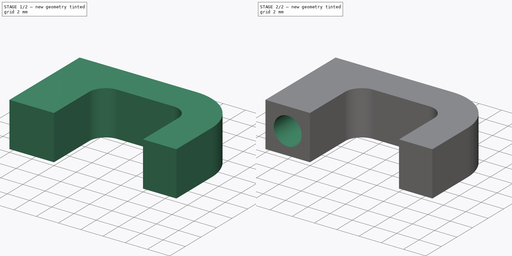
[diagram: build sequence overview — one tinted view per stage of 2, left to right]
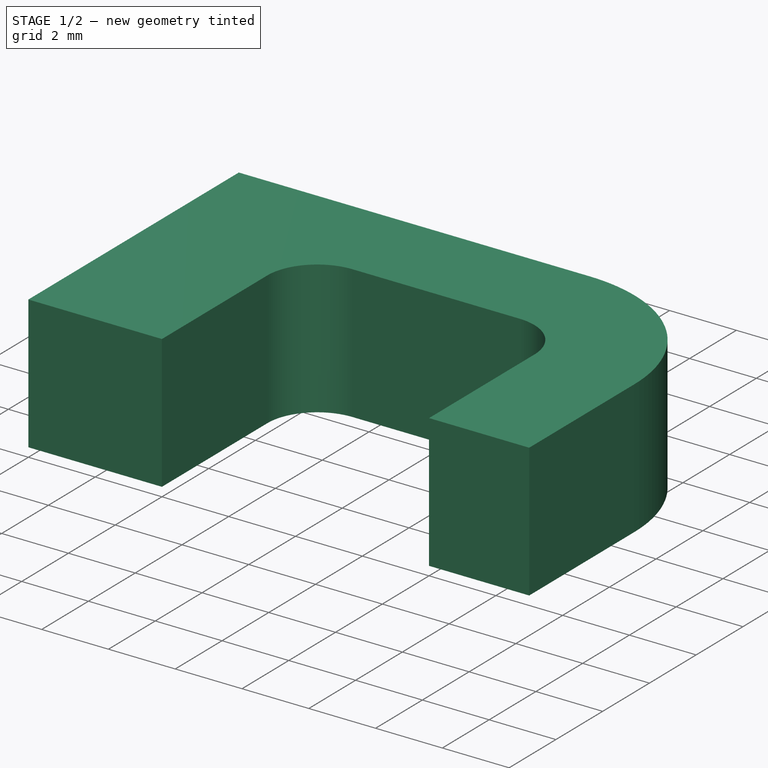
[diagram: stage 1 of 2 — iso view after this stage's code; geometry added in this stage tinted green]
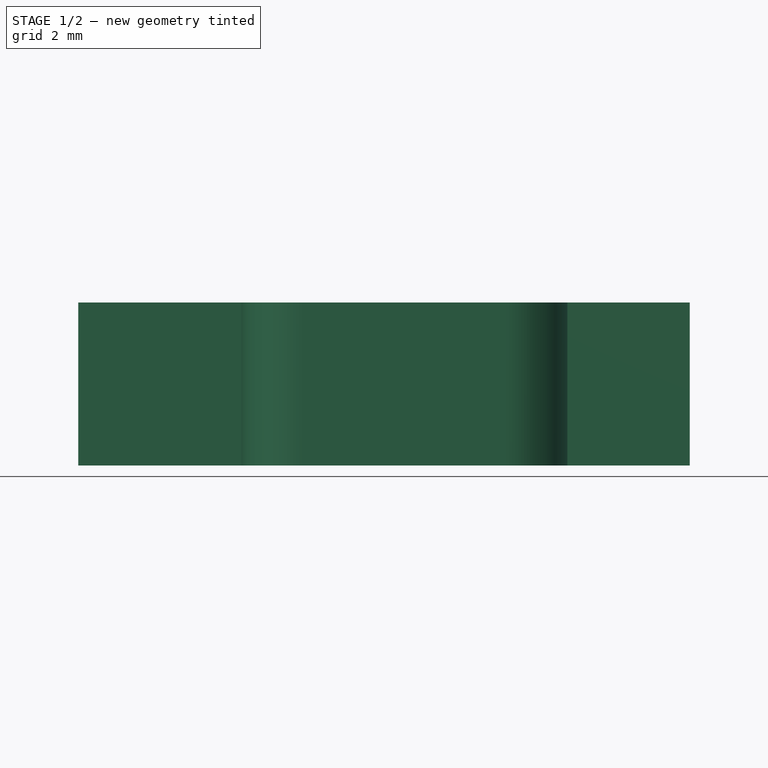
[diagram: stage 1 of 2 — front view after this stage's code; geometry added in this stage tinted green]
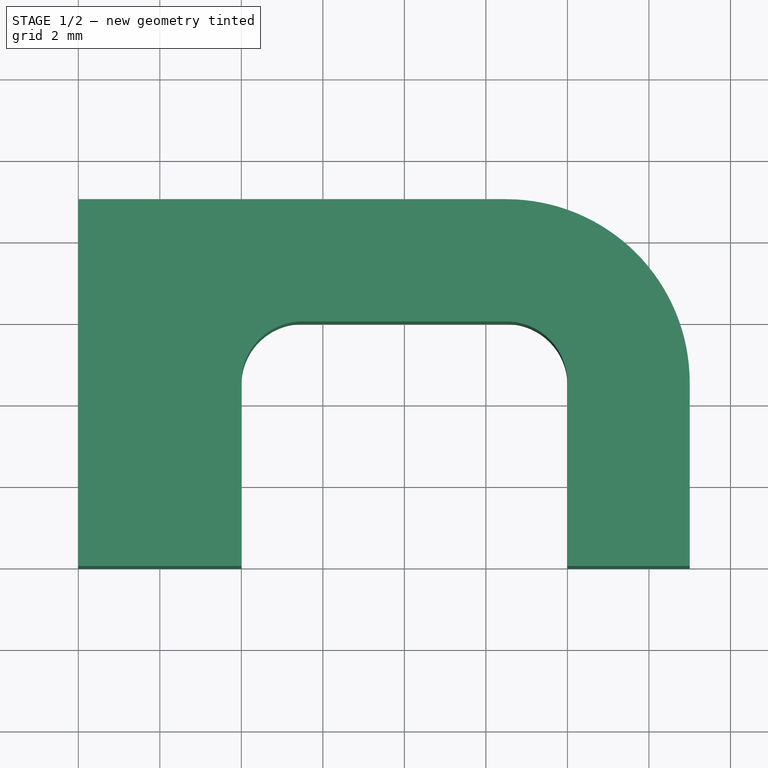
[diagram: stage 1 of 2 — top view after this stage's code; geometry added in this stage tinted green]
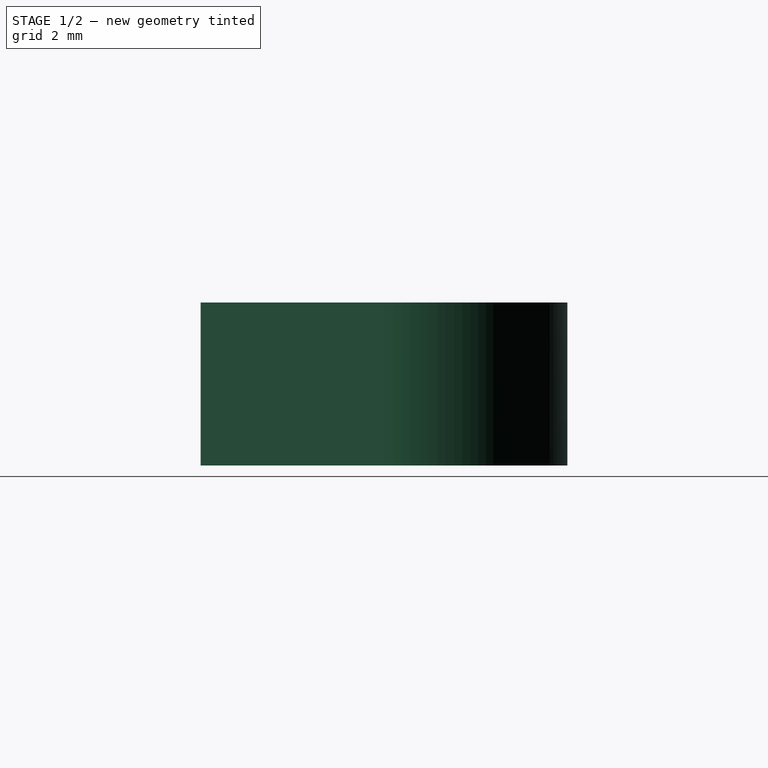
[diagram: stage 1 of 2 — right view after this stage's code; geometry added in this stage tinted green]
FCSTD DOCUMENT  (FreeCAD 1.0R39109 (Git))
Label: Cable Clamp
License: All rights reserved
LicenseURL: http://en.wikipedia.org/wiki/All_rights_reserved
objects: Sketcher::SketchObject×2, Spreadsheet::Sheet×1, PartDesign::Pad×1, PartDesign::Pocket×1, PartDesign::Body×1, Measure::MeasureLength×1, App::DocumentObjectGroup×1
note: 11 computed .brp shape members not serialized (recipe doc carries the construction recipe); baked Part::Feature solids carry a one-line shape summary decoded from their .brp

FEATURE [Sketcher::SketchObject] Sketch
  ArcFitTolerance = 1e-06
  AttachmentSupport = -> [XY_Plane]
  FullyConstrained = true
  MakeInternals = false
  MapMode = 5
  expr: Constraints[29] = Spreadsheet.clamp_thickness
  expr: Constraints[30] = Spreadsheet.nail_support_thickness
  expr: Constraints[31] = Spreadsheet.inner_radius
  expr: Constraints[32] = Spreadsheet.cable_width
  expr: Constraints[33] = Spreadsheet.cable_height
  sketch-geometry (11):
    g0: LineSegment StartX=0 StartY=0 StartZ=0 EndX=4 EndY=0 EndZ=0
    g1: LineSegment StartX=4 StartY=0 StartZ=0 EndX=4 EndY=4.5 EndZ=0
    g2: ArcOfCircle CenterX=5.5 CenterY=4.5 CenterZ=0 NormalX=0 NormalY=0 NormalZ=1 AngleXU=0 Radius=1.5 StartAngle=1.5708 EndAngle=3.14159
    g3: ArcOfCircle CenterX=10.5 CenterY=4.5 CenterZ=0 NormalX=0 NormalY=0 NormalZ=1 AngleXU=0 Radius=1.5 StartAngle=0 EndAngle=1.5708
    g4: LineSegment StartX=5.5 StartY=6 StartZ=0 EndX=10.5 EndY=6 EndZ=0
    g5: LineSegment StartX=12 StartY=4.5 StartZ=0 EndX=12 EndY=0 EndZ=0
    g6: LineSegment StartX=12 StartY=0 StartZ=0 EndX=15 EndY=0 EndZ=0
    g7: LineSegment StartX=15 StartY=0 StartZ=0 EndX=15 EndY=4.5 EndZ=0
    g8: ArcOfCircle CenterX=10.5 CenterY=4.5 CenterZ=0 NormalX=0 NormalY=0 NormalZ=1 AngleXU=0 Radius=4.5 StartAngle=0 EndAngle=1.5708
    g9: LineSegment StartX=0 StartY=9 StartZ=0 EndX=0 EndY=0 EndZ=0
    g10: LineSegment StartX=0 StartY=9 StartZ=0 EndX=10.5 EndY=9 EndZ=0
  constraints (34):
    c: Coincident(g0,g-1)
    c: Horizontal(g0)
    c: Coincident(g1,g0)
    c: Vertical(g1)
    c: Coincident(g2,g1)
    c: Coincident(g4,g2)
    c: Coincident(g4,g3)
    c: Horizontal(g4)
    c: Coincident(g5,g3)
    c: PointOnObject(g5,g-1)
    c: Vertical(g5)
    c: Coincident(g6,g5)
    c: Horizontal(g6)
    c: Coincident(g7,g6)
    c: Vertical(g7)
    c: Coincident(g8,g3)
    c: Coincident(g8,g7)
    c: Coincident(g9,g0)
    c: Vertical(g9)
    c: Coincident(g10,g9)
    c: Coincident(g10,g8)
    c: Horizontal(g10)
    c: Vertical(g8,g3)
    c: Horizontal(g2,g3)
    c: Horizontal(g1,g2)
    c: Horizontal(g3,g3)
    c: Vertical(g2,g2)
    c: Vertical(g3,g3)
    c: Horizontal(g3,g7)
    c: DistanceX(g6,g6) = 3
    c: DistanceX(g0,g0) = 4
    c: Radius(g2) = 1.5
    c: DistanceX(g0,g5) = 8
    c: DistanceY(g0,g2) = 6
FEATURE [Spreadsheet::Sheet] Spreadsheet
  cells = A1='cable_width; B1(cable_width)=8; A2='cable_height; B2(cable_height)=6; A3='clamp_thickness; B3(clamp_thickness)=3; A4='nail_thickness; B4(nail_thickness)=2.5; A5='inner_radius; B5(inner_radius)=1.5; A6='nail_support_thickness; B6(nail_support_thickness)=4; A7='clamp_width; B7(clamp_width)=4
FEATURE [PartDesign::Pad] Pad
  Direction = (0,0,1)
  Length = 4
  Length2 = 10
  Profile = -> Sketch
  ReferenceAxis = -> Sketch [N_Axis]
  Suppressed = false
  Type = 0
  expr: Length = Spreadsheet.clamp_width
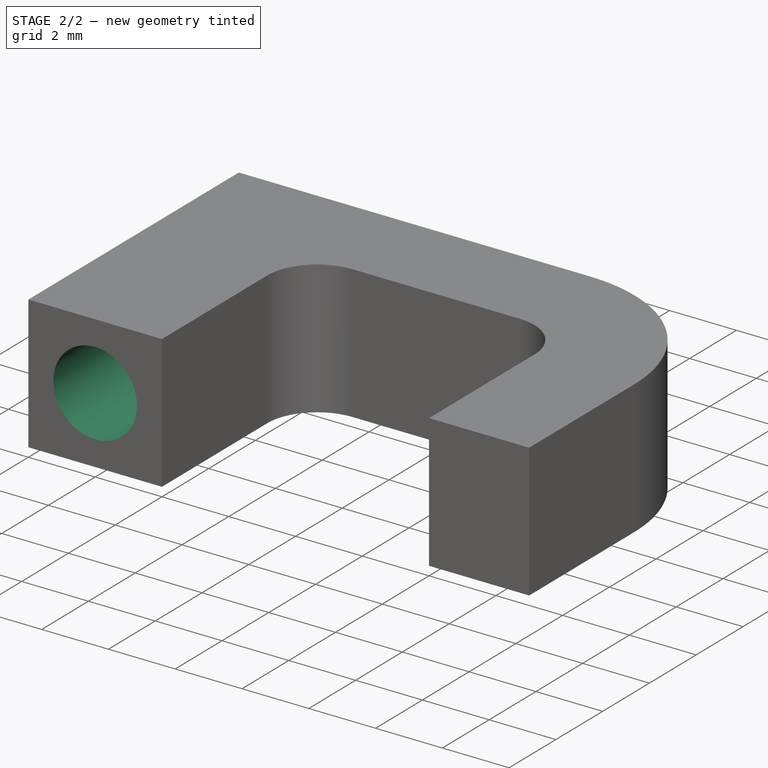
[diagram: stage 2 of 2 — iso view after this stage's code; geometry added in this stage tinted green]
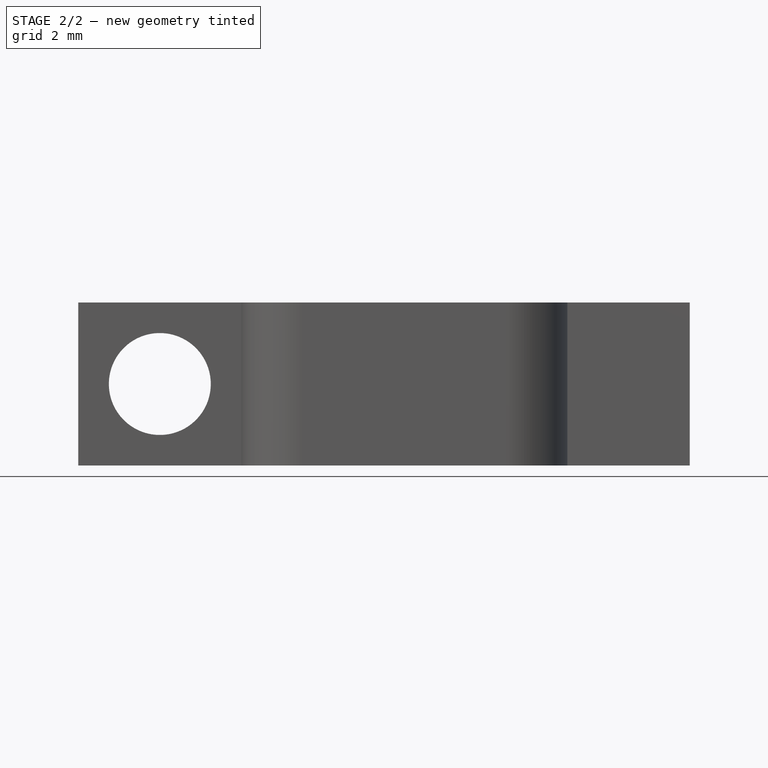
[diagram: stage 2 of 2 — front view after this stage's code; geometry added in this stage tinted green]
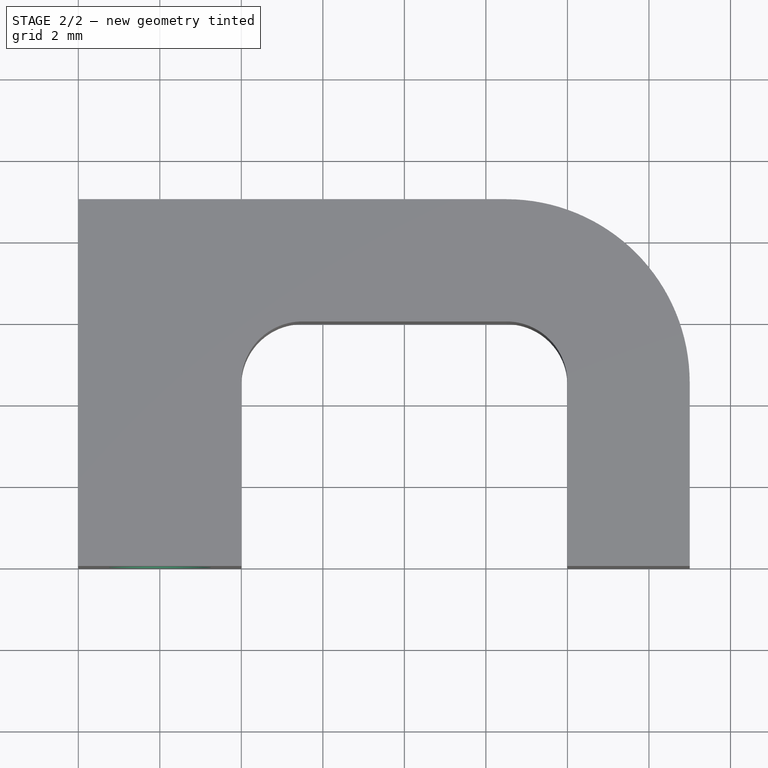
[diagram: stage 2 of 2 — top view after this stage's code; geometry added in this stage tinted green]
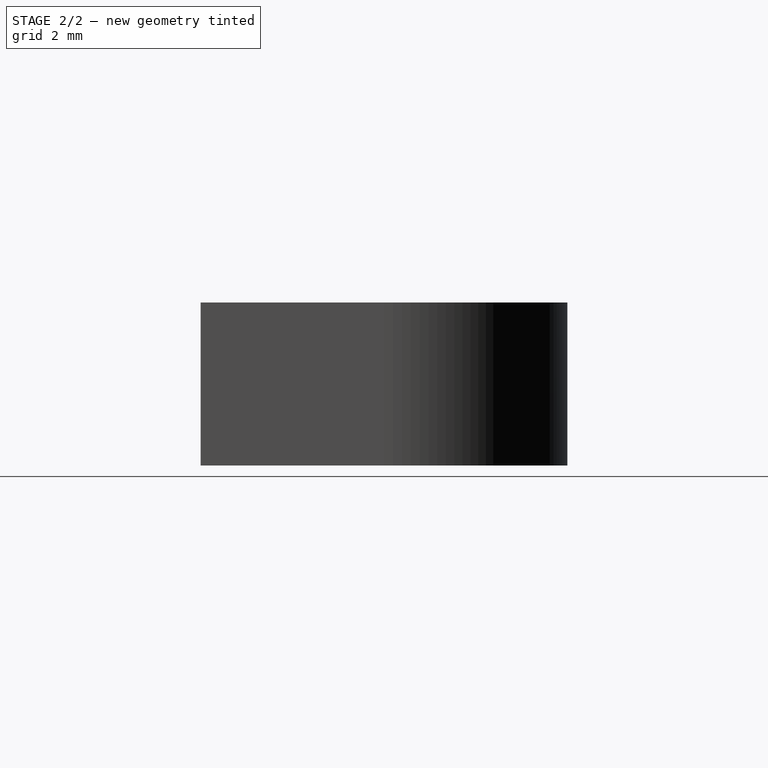
[diagram: stage 2 of 2 — right view after this stage's code; geometry added in this stage tinted green]
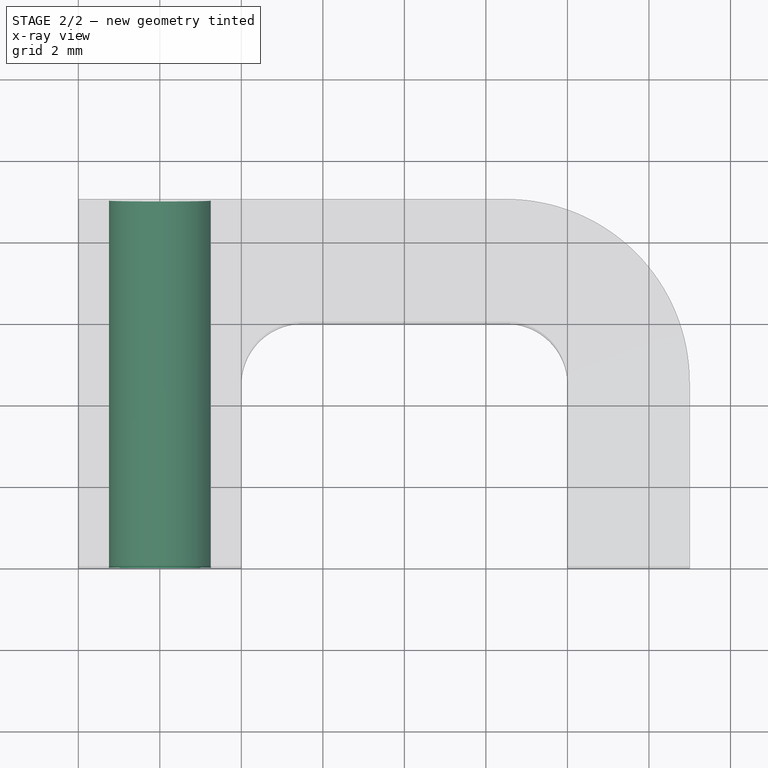
[diagram: stage 2 of 2 — x-ray composite at the top view; earlier geometry ghosted, this stage's added geometry solid]
FEATURE [Sketcher::SketchObject] Sketch001
  ArcFitTolerance = 1e-06
  AttachmentSupport = -> [Pad]
  FullyConstrained = true
  MakeInternals = false
  MapMode = 5
  Placement = pos=(0,0,0) rot=(1,0,0;1.5708rad)
  expr: Constraints[0] = Spreadsheet.nail_thickness
  expr: Constraints[1] = Spreadsheet.nail_support_thickness / 2
  expr: Constraints[2] = Spreadsheet.clamp_width / 2
  sketch-geometry (1):
    g0: Circle CenterX=2 CenterY=2 CenterZ=0 NormalX=0 NormalY=0 NormalZ=1 AngleXU=0 Radius=1.25
  constraints (3):
    c: Diameter(g0) = 2.5
    c: DistanceX(g-1,g0) = 2
    c: DistanceY(g-1,g0) = 2
FEATURE [PartDesign::Pocket] Pocket
  BaseFeature = -> Pad
  Direction = (0,1,-2e-16)
  Length = 5
  Length2 = 5
  Profile = -> Sketch001
  ReferenceAxis = -> Sketch001 [N_Axis]
  Suppressed = false
  Type = 1
FEATURE [PartDesign::Body] Body
  AllowCompound = false
  Group = -> [Sketch,Pad,Sketch001,Pocket]
  Origin = -> Origin
  Tip = -> Pocket
FEATURE [Measure::MeasureLength] Length  label="Length: 9,00 mm"
  Elements = -> [Body]
  Length = 9
FEATURE [App::DocumentObjectGroup] Measurements
  Group = -> [Length]
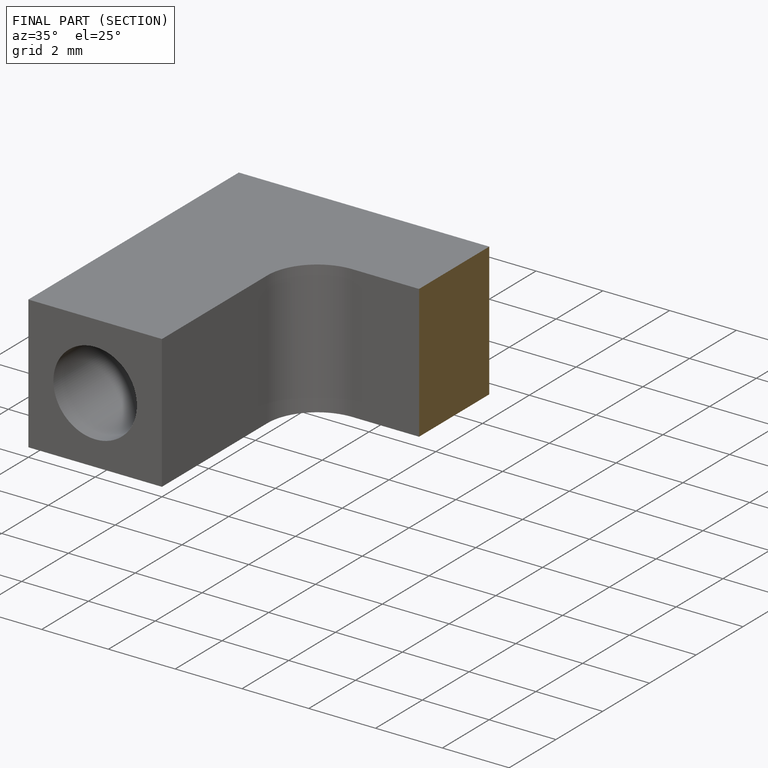
[diagram: finished part — half-section view (interior)]
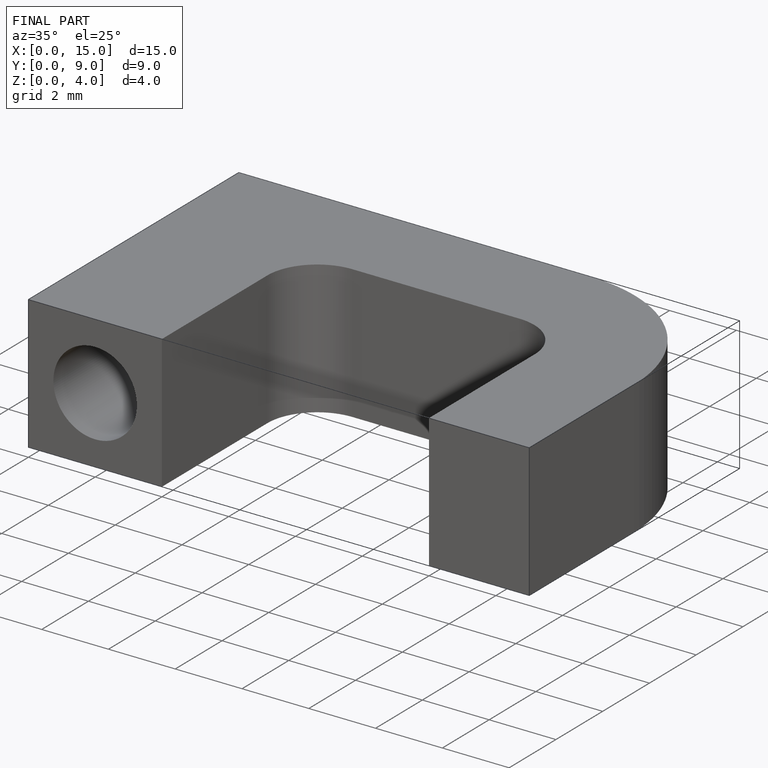
[diagram: finished part — iso view with bounding-box wireframe]
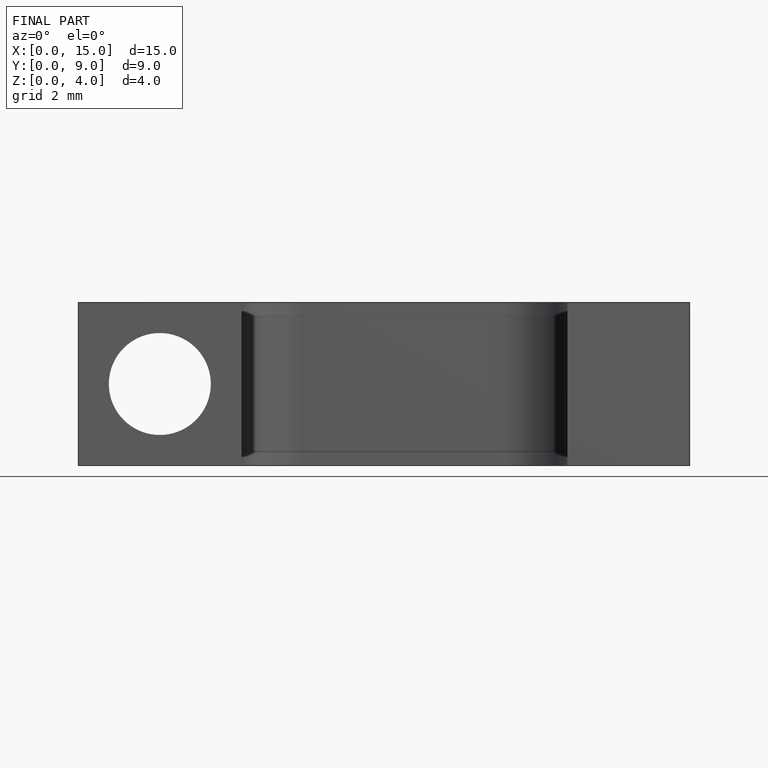
[diagram: finished part — front view with bounding-box wireframe]
